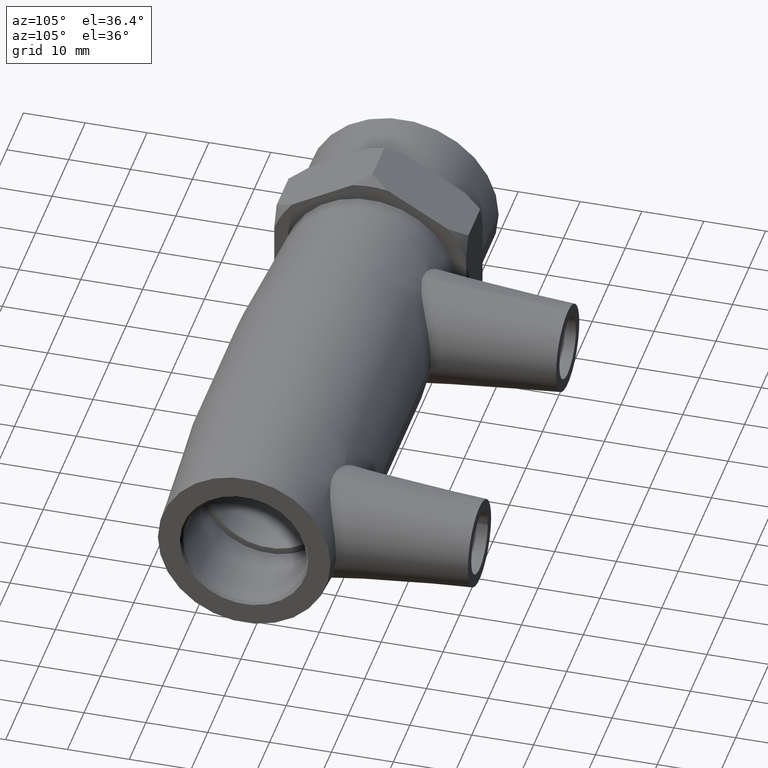
[diagram: clean part render]
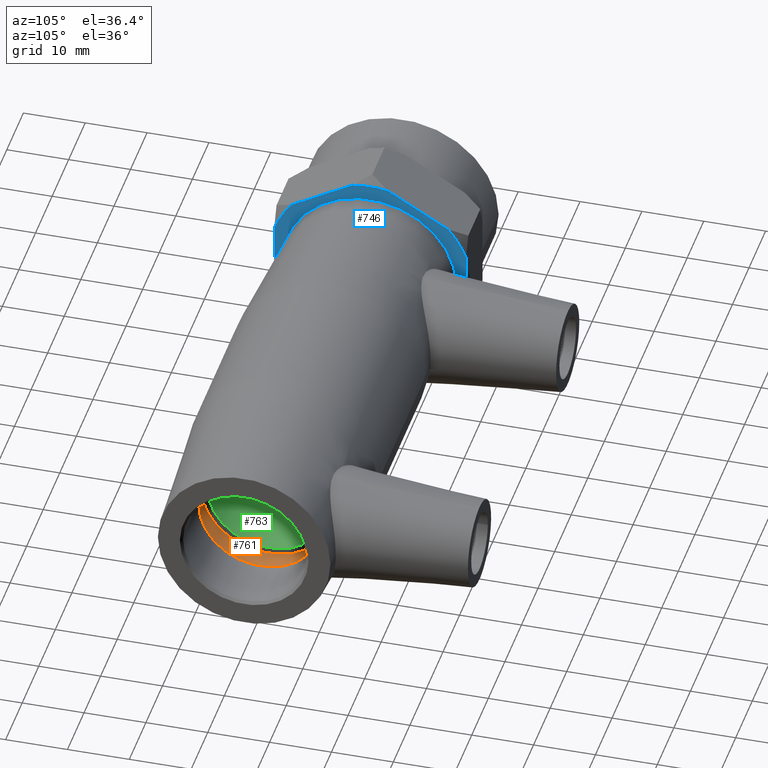
[diagram: same view with three faces highlighted in distinct colors, each labeled with its STEP entity id]
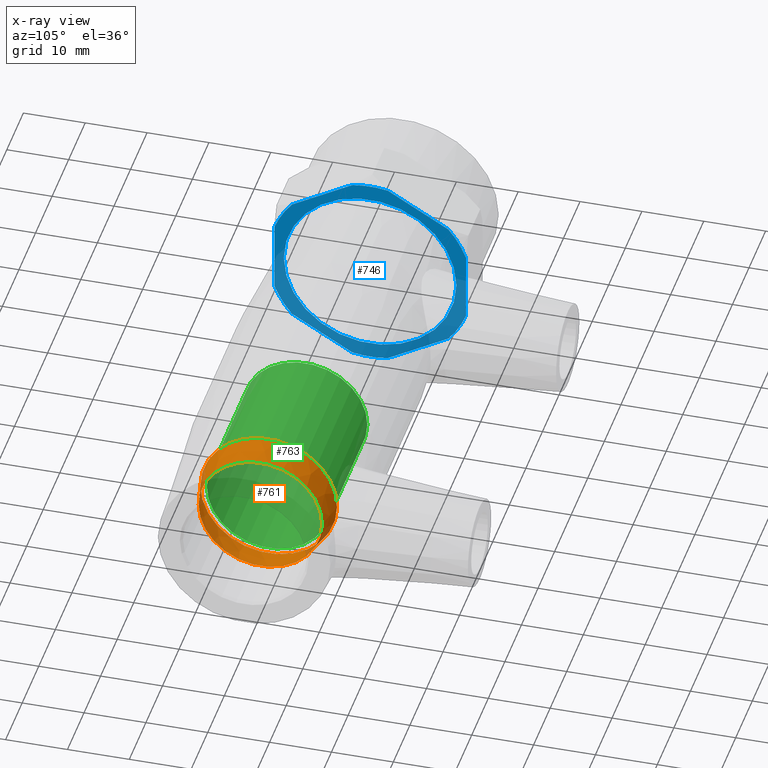
[diagram: x-ray of the same camera — body ghosted, the three highlighted faces saturated]
A machine part, auxiliary view with three faces highlighted in distinct colors.
The next image is the same camera in x-ray (body ghosted, the three faces saturated) — at least one of them is partly hidden behind the body in this view.
Their STEP definitions:

[orange] entity #761 — the highlighted conical surface has half-angle 12 deg.
#147=FACE_BOUND('',#281,.T.);
#202=FACE_OUTER_BOUND('',#280,.T.);
#280=EDGE_LOOP('',(#681));
#281=EDGE_LOOP('',(#682));
#294=CIRCLE('',#774,10.);
#333=CIRCLE('',#860,11.0486123709054);
#339=VERTEX_POINT('',#1101);
#404=VERTEX_POINT('',#1424);
#410=EDGE_CURVE('',#339,#339,#294,.T.);
#499=EDGE_CURVE('',#404,#404,#333,.T.);
#681=ORIENTED_EDGE('',*,*,#499,.F.);
#682=ORIENTED_EDGE('',*,*,#410,.T.);
#710=CONICAL_SURFACE('',#859,10.5243061854527,12.);
#761=ADVANCED_FACE('',(#202,#147),#710,.F.);
#774=AXIS2_PLACEMENT_3D('',#1102,#881,#882);
#859=AXIS2_PLACEMENT_3D('',#1423,#1075,#1076);
#860=AXIS2_PLACEMENT_3D('',#1425,#1077,#1078);
#881=DIRECTION('center_axis',(1.,0.,0.));
#882=DIRECTION('ref_axis',(0.,0.,-1.));
#1075=DIRECTION('center_axis',(-1.,0.,0.));
#1076=DIRECTION('ref_axis',(0.,1.,0.));
#1077=DIRECTION('center_axis',(1.,0.,0.));
#1078=DIRECTION('ref_axis',(0.,0.,-1.));
#1101=CARTESIAN_POINT('',(28.1333333333333,10.,0.));
#1102=CARTESIAN_POINT('Origin',(28.1333333333333,0.,0.));
#1423=CARTESIAN_POINT('Origin',(25.6666666666667,0.,0.));
#1424=CARTESIAN_POINT('',(23.2,11.0486123709054,0.));
#1425=CARTESIAN_POINT('Origin',(23.2,0.,0.));

[blue] entity #746 — the highlighted planar face has unit normal (1, 0, 0).
#26=LINE('',#1276,#50);
#30=LINE('',#1281,#54);
#35=LINE('',#1289,#59);
#38=LINE('',#1293,#62);
#39=LINE('',#1295,#63);
#40=LINE('',#1297,#64);
#50=VECTOR('',#982,11.3012087791832);
#54=VECTOR('',#988,11.3012087791835);
#59=VECTOR('',#999,11.3012087791836);
#62=VECTOR('',#1004,11.3012087791834);
#63=VECTOR('',#1007,11.3012087791832);
#64=VECTOR('',#1010,11.3012087791837);
#114=PLANE('',#831);
#133=FACE_BOUND('',#252,.T.);
#187=FACE_OUTER_BOUND('',#251,.T.);
#251=EDGE_LOOP('',(#641,#642,#643,#644,#645,#646,#647,#648,#649,#650,#651,
#652));
#252=EDGE_LOOP('',(#653));
#312=CIRCLE('',#804,16.4978583448784);
#313=CIRCLE('',#806,16.4978583448784);
#314=CIRCLE('',#808,16.4978583448784);
#315=CIRCLE('',#810,16.4978583448784);
#316=CIRCLE('',#812,16.4978583448784);
#317=CIRCLE('',#814,16.4978583448784);
#320=CIRCLE('',#832,13.95);
#369=VERTEX_POINT('',#1197);
#371=VERTEX_POINT('',#1202);
#372=VERTEX_POINT('',#1208);
#374=VERTEX_POINT('',#1213);
#376=VERTEX_POINT('',#1220);
#377=VERTEX_POINT('',#1224);
#379=VERTEX_POINT('',#1231);
#380=VERTEX_POINT('',#1235);
#381=VERTEX_POINT('',#1241);
#383=VERTEX_POINT('',#1246);
#384=VERTEX_POINT('',#1252);
#386=VERTEX_POINT('',#1257);
#389=VERTEX_POINT('',#1305);
#441=EDGE_CURVE('',#371,#369,#312,.T.);
#444=EDGE_CURVE('',#374,#372,#313,.T.);
#448=EDGE_CURVE('',#376,#377,#314,.T.);
#451=EDGE_CURVE('',#379,#380,#315,.T.);
#453=EDGE_CURVE('',#383,#381,#316,.T.);
#456=EDGE_CURVE('',#386,#384,#317,.T.);
#467=EDGE_CURVE('',#386,#380,#26,.T.);
#471=EDGE_CURVE('',#383,#384,#30,.T.);
#476=EDGE_CURVE('',#374,#377,#35,.T.);
#479=EDGE_CURVE('',#371,#372,#38,.T.);
#480=EDGE_CURVE('',#379,#369,#39,.T.);
#481=EDGE_CURVE('',#376,#381,#40,.T.);
#484=EDGE_CURVE('',#389,#389,#320,.T.);
#641=ORIENTED_EDGE('',*,*,#456,.T.);
#642=ORIENTED_EDGE('',*,*,#471,.F.);
#643=ORIENTED_EDGE('',*,*,#453,.T.);
#644=ORIENTED_EDGE('',*,*,#481,.F.);
#645=ORIENTED_EDGE('',*,*,#448,.T.);
#646=ORIENTED_EDGE('',*,*,#476,.F.);
#647=ORIENTED_EDGE('',*,*,#444,.T.);
#648=ORIENTED_EDGE('',*,*,#479,.F.);
#649=ORIENTED_EDGE('',*,*,#441,.T.);
#650=ORIENTED_EDGE('',*,*,#480,.F.);
#651=ORIENTED_EDGE('',*,*,#451,.T.);
#652=ORIENTED_EDGE('',*,*,#467,.F.);
#653=ORIENTED_EDGE('',*,*,#484,.F.);
#746=ADVANCED_FACE('',(#187,#133),#114,.T.);
#804=AXIS2_PLACEMENT_3D('',#1203,#941,#942);
#806=AXIS2_PLACEMENT_3D('',#1214,#945,#946);
#808=AXIS2_PLACEMENT_3D('',#1228,#949,#950);
#810=AXIS2_PLACEMENT_3D('',#1239,#953,#954);
#812=AXIS2_PLACEMENT_3D('',#1247,#957,#958);
#814=AXIS2_PLACEMENT_3D('',#1258,#961,#962);
#831=AXIS2_PLACEMENT_3D('',#1304,#1019,#1020);
#832=AXIS2_PLACEMENT_3D('',#1306,#1021,#1022);
#941=DIRECTION('center_axis',(1.,0.,0.));
#942=DIRECTION('ref_axis',(0.,0.,1.));
#945=DIRECTION('center_axis',(1.,0.,0.));
#946=DIRECTION('ref_axis',(0.,0.,1.));
#949=DIRECTION('center_axis',(1.,0.,0.));
#950=DIRECTION('ref_axis',(0.,0.,1.));
#953=DIRECTION('center_axis',(1.,0.,0.));
#954=DIRECTION('ref_axis',(0.,0.,1.));
#957=DIRECTION('center_axis',(1.,0.,0.));
#958=DIRECTION('ref_axis',(0.,0.,1.));
#961=DIRECTION('center_axis',(1.,0.,0.));
#962=DIRECTION('ref_axis',(0.,0.,1.));
#982=DIRECTION('',(0.,-0.866025403784438,0.5));
#988=DIRECTION('',(0.,-0.866025403784439,-0.5));
#999=DIRECTION('',(0.,0.866025403784439,-0.5));
#1004=DIRECTION('',(0.,0.866025403784439,0.5));
#1007=DIRECTION('',(0.,3.72186326396819E-16,1.));
#1010=DIRECTION('',(0.,0.,-1.));
#1019=DIRECTION('center_axis',(1.,0.,0.));
#1020=DIRECTION('ref_axis',(0.,0.,-1.));
#1021=DIRECTION('center_axis',(1.,0.,0.));
#1022=DIRECTION('ref_axis',(0.,0.,-1.));
#1197=CARTESIAN_POINT('',(-38.,-15.5,5.65060438959161));
#1202=CARTESIAN_POINT('',(-38.,-12.6435669481223,10.598091563863));
#1203=CARTESIAN_POINT('Origin',(-38.,0.,0.));
#1208=CARTESIAN_POINT('',(-38.,-2.85643305187773,16.2486959534547));
#1213=CARTESIAN_POINT('',(-38.,2.85643305187761,16.2486959534547));
#1214=CARTESIAN_POINT('Origin',(-38.,0.,0.));
#1220=CARTESIAN_POINT('',(-38.,15.5,5.65060438959184));
#1224=CARTESIAN_POINT('',(-38.,12.6435669481224,10.5980915638629));
#1228=CARTESIAN_POINT('Origin',(-38.,0.,0.));
#1231=CARTESIAN_POINT('',(-38.,-15.5,-5.65060438959159));
#1235=CARTESIAN_POINT('',(-38.,-12.6435669481222,-10.598091563863));
#1239=CARTESIAN_POINT('Origin',(-38.,0.,0.));
#1241=CARTESIAN_POINT('',(-38.,15.5,-5.65060438959184));
#1246=CARTESIAN_POINT('',(-38.,12.6435669481223,-10.5980915638629));
#1247=CARTESIAN_POINT('Origin',(-38.,0.,0.));
#1252=CARTESIAN_POINT('',(-38.,2.85643305187767,-16.2486959534547));
#1257=CARTESIAN_POINT('',(-38.,-2.85643305187783,-16.2486959534546));
#1258=CARTESIAN_POINT('Origin',(-38.,0.,0.));
#1276=CARTESIAN_POINT('',(-38.,-5.31512119350343E-14,-17.8978583448784));
#1281=CARTESIAN_POINT('',(-38.,15.5,-8.94892917243921));
#1289=CARTESIAN_POINT('',(-38.,-4.16597319987434E-14,17.8978583448784));
#1293=CARTESIAN_POINT('',(-38.,-15.5,8.94892917243919));
#1295=CARTESIAN_POINT('',(-38.,-15.5,-8.94892917243921));
#1297=CARTESIAN_POINT('',(-38.,15.5,8.94892917243918));
#1304=CARTESIAN_POINT('Origin',(-38.,10.,0.));
#1305=CARTESIAN_POINT('',(-38.,13.95,0.));
#1306=CARTESIAN_POINT('Origin',(-38.,0.,0.));

[green] entity #763 — the highlighted cylindrical surface (bore or boss wall) has radius 10 mm, axis along (1, 0, 0).
#98=CYLINDRICAL_SURFACE('',#863,10.);
#149=FACE_BOUND('',#285,.T.);
#204=FACE_OUTER_BOUND('',#284,.T.);
#284=EDGE_LOOP('',(#685));
#285=EDGE_LOOP('',(#686));
#334=CIRCLE('',#862,10.);
#335=CIRCLE('',#864,10.);
#405=VERTEX_POINT('',#1427);
#406=VERTEX_POINT('',#1430);
#500=EDGE_CURVE('',#405,#405,#334,.T.);
#501=EDGE_CURVE('',#406,#406,#335,.T.);
#685=ORIENTED_EDGE('',*,*,#501,.F.);
#686=ORIENTED_EDGE('',*,*,#500,.T.);
#763=ADVANCED_FACE('',(#204,#149),#98,.F.);
#862=AXIS2_PLACEMENT_3D('',#1428,#1081,#1082);
#863=AXIS2_PLACEMENT_3D('',#1429,#1083,#1084);
#864=AXIS2_PLACEMENT_3D('',#1431,#1085,#1086);
#1081=DIRECTION('center_axis',(1.,0.,0.));
#1082=DIRECTION('ref_axis',(0.,0.,-1.));
#1083=DIRECTION('center_axis',(1.,0.,0.));
#1084=DIRECTION('ref_axis',(0.,1.,0.));
#1085=DIRECTION('center_axis',(1.,0.,0.));
#1086=DIRECTION('ref_axis',(0.,0.,-1.));
#1427=CARTESIAN_POINT('',(23.2,10.,0.));
#1428=CARTESIAN_POINT('Origin',(23.2,0.,0.));
#1429=CARTESIAN_POINT('Origin',(12.1,0.,0.));
#1430=CARTESIAN_POINT('',(1.00000000000001,10.,0.));
#1431=CARTESIAN_POINT('Origin',(1.00000000000001,0.,0.));